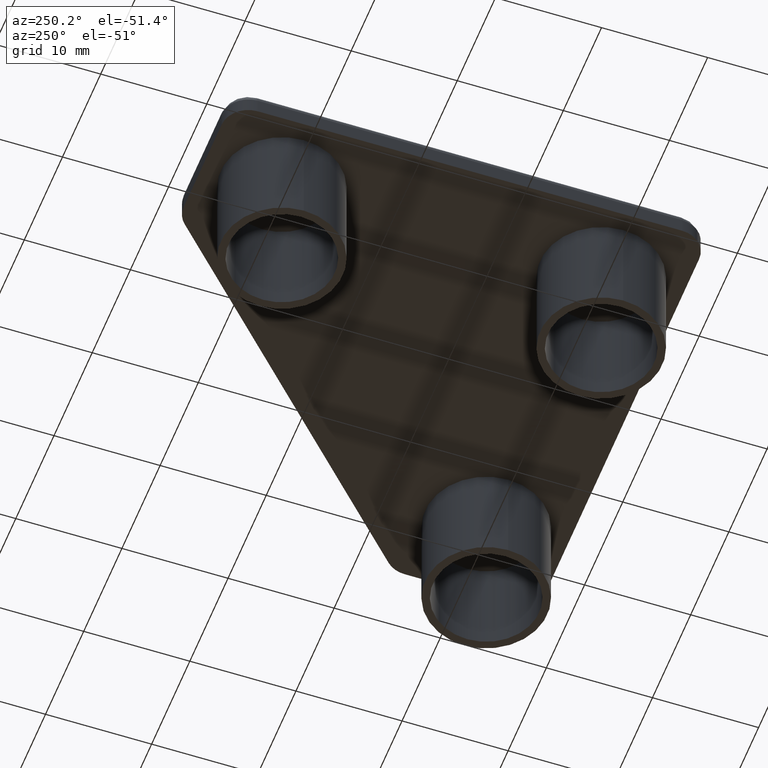
[diagram: clean part render]
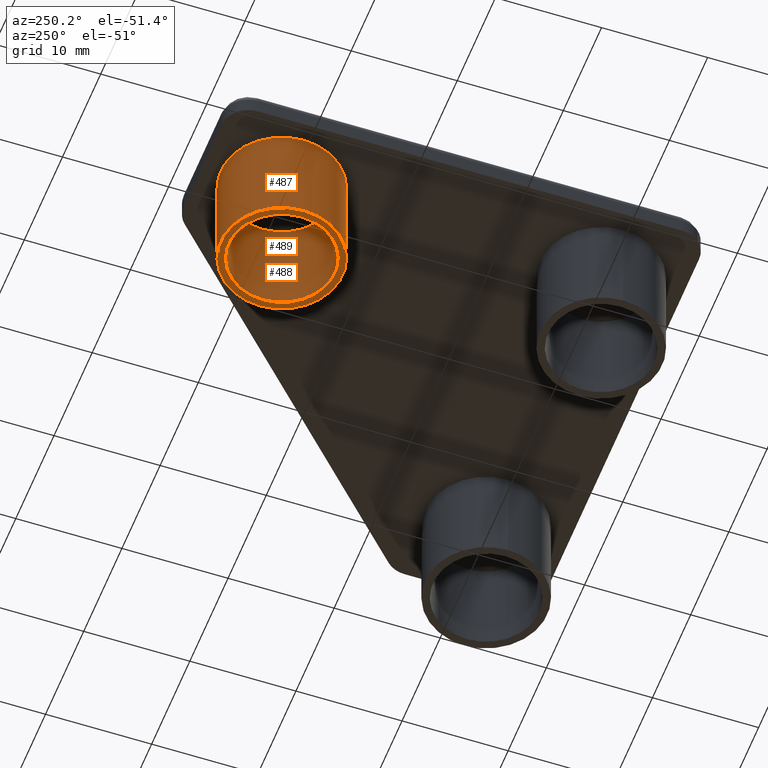
[diagram: same view with one multi-face feature highlighted, each face labeled with its STEP entity id]
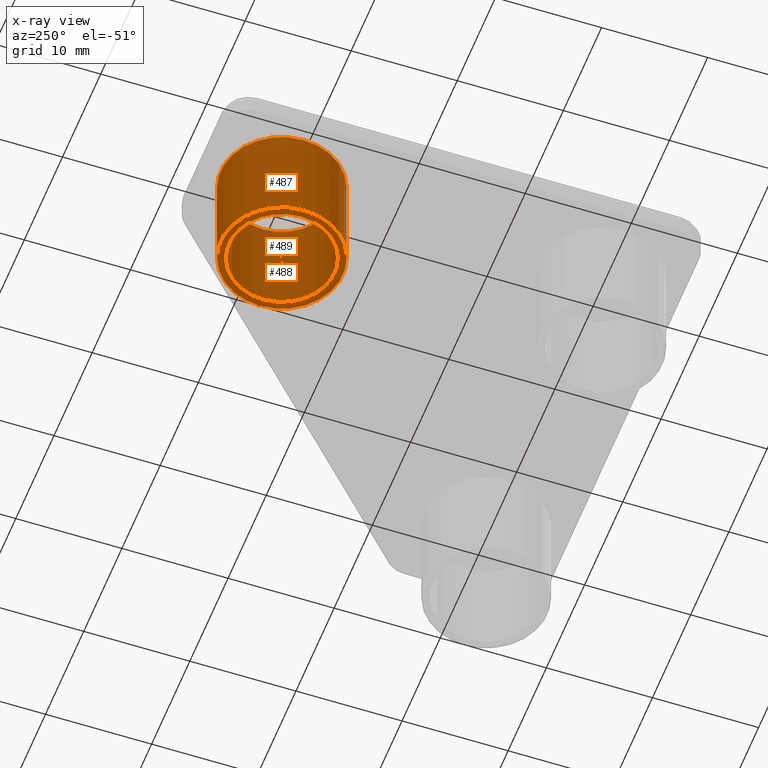
[diagram: x-ray of the same camera — body ghosted, the whole feature saturated]
A machine part, auxiliary view. The highlighted faces form ONE feature: a stepped (counterbored) hole: 2 coaxial cylindrical walls of radii 5 -> 5.75 mm joined by 1 annular planar shoulder face(s). The faces share edges in the B-rep.
The next image is the same camera in x-ray: the body ghosted and the whole hole feature saturated, so the bore chain is visible through the body.
Their STEP definitions:
[1] entity #487 (Cylinder):
#34=CYLINDRICAL_SURFACE('',#553,5.749999999977);
#45=FACE_BOUND('',#123,.T.);
#79=FACE_OUTER_BOUND('',#122,.T.);
#122=EDGE_LOOP('',(#437));
#123=EDGE_LOOP('',(#438));
#135=CIRCLE('',#500,5.749999999977);
#163=CIRCLE('',#554,5.749999999977);
#227=VERTEX_POINT('',#743);
#255=VERTEX_POINT('',#1090);
#269=EDGE_CURVE('',#227,#227,#135,.T.);
#317=EDGE_CURVE('',#255,#255,#163,.T.);
#437=ORIENTED_EDGE('',*,*,#269,.T.);
#438=ORIENTED_EDGE('',*,*,#317,.F.);
#487=ADVANCED_FACE('',(#79,#45),#34,.T.);
#500=AXIS2_PLACEMENT_3D('',#744,#581,#582);
#553=AXIS2_PLACEMENT_3D('',#1089,#707,#708);
#554=AXIS2_PLACEMENT_3D('',#1091,#709,#710);
#581=DIRECTION('center_axis',(0.,0.,-1.));
#582=DIRECTION('ref_axis',(1.,0.,0.));
#707=DIRECTION('center_axis',(0.,0.,-1.));
#708=DIRECTION('ref_axis',(1.,0.,0.));
#709=DIRECTION('center_axis',(0.,0.,-1.));
#710=DIRECTION('ref_axis',(1.,0.,0.));
#743=CARTESIAN_POINT('',(-20.7999777967921,37.5499559998498,0.));
#744=CARTESIAN_POINT('Origin',(-15.0499777968151,37.5499559998498,0.));
#1089=CARTESIAN_POINT('Origin',(-15.0499777968151,37.5499559998498,0.));
#1090=CARTESIAN_POINT('',(-20.7999777967921,37.5499559998498,-9.99999999995998));
#1091=CARTESIAN_POINT('Origin',(-15.0499777968151,37.5499559998498,-9.99999999995998));
[2] entity #488 (Cylinder):
#35=CYLINDRICAL_SURFACE('',#555,4.99999999998);
#46=FACE_BOUND('',#125,.T.);
#80=FACE_OUTER_BOUND('',#124,.T.);
#124=EDGE_LOOP('',(#439));
#125=EDGE_LOOP('',(#440));
#136=CIRCLE('',#502,4.99999999998);
#164=CIRCLE('',#556,4.99999999998);
#228=VERTEX_POINT('',#746);
#256=VERTEX_POINT('',#1093);
#270=EDGE_CURVE('',#228,#228,#136,.T.);
#318=EDGE_CURVE('',#256,#256,#164,.T.);
#439=ORIENTED_EDGE('',*,*,#270,.T.);
#440=ORIENTED_EDGE('',*,*,#318,.F.);
#488=ADVANCED_FACE('',(#80,#46),#35,.F.);
#502=AXIS2_PLACEMENT_3D('',#747,#585,#586);
#555=AXIS2_PLACEMENT_3D('',#1092,#711,#712);
#556=AXIS2_PLACEMENT_3D('',#1094,#713,#714);
#585=DIRECTION('center_axis',(0.,0.,1.));
#586=DIRECTION('ref_axis',(1.,0.,0.));
#711=DIRECTION('center_axis',(0.,0.,1.));
#712=DIRECTION('ref_axis',(1.,0.,0.));
#713=DIRECTION('center_axis',(0.,0.,1.));
#714=DIRECTION('ref_axis',(1.,0.,0.));
#746=CARTESIAN_POINT('',(-20.0499777967951,37.5499559998498,0.));
#747=CARTESIAN_POINT('Origin',(-15.0499777968151,37.5499559998498,0.));
#1092=CARTESIAN_POINT('Origin',(-15.0499777968151,37.5499559998498,0.));
#1093=CARTESIAN_POINT('',(-20.0499777967951,37.5499559998498,-9.99999999995998));
#1094=CARTESIAN_POINT('Origin',(-15.0499777968151,37.5499559998498,-9.99999999995998));
[3] entity #489 (Plane):
#47=FACE_BOUND('',#127,.T.);
#81=FACE_OUTER_BOUND('',#126,.T.);
#126=EDGE_LOOP('',(#441));
#127=EDGE_LOOP('',(#442));
#163=CIRCLE('',#554,5.749999999977);
#164=CIRCLE('',#556,4.99999999998);
#255=VERTEX_POINT('',#1090);
#256=VERTEX_POINT('',#1093);
#317=EDGE_CURVE('',#255,#255,#163,.T.);
#318=EDGE_CURVE('',#256,#256,#164,.T.);
#441=ORIENTED_EDGE('',*,*,#317,.T.);
#442=ORIENTED_EDGE('',*,*,#318,.T.);
#455=PLANE('',#557);
#489=ADVANCED_FACE('',(#81,#47),#455,.T.);
#554=AXIS2_PLACEMENT_3D('',#1091,#709,#710);
#556=AXIS2_PLACEMENT_3D('',#1094,#713,#714);
#557=AXIS2_PLACEMENT_3D('',#1095,#715,#716);
#709=DIRECTION('center_axis',(0.,0.,-1.));
#710=DIRECTION('ref_axis',(1.,0.,0.));
#713=DIRECTION('center_axis',(0.,0.,1.));
#714=DIRECTION('ref_axis',(1.,0.,0.));
#715=DIRECTION('center_axis',(0.,0.,-1.));
#716=DIRECTION('ref_axis',(-1.,0.,0.));
#1090=CARTESIAN_POINT('',(-20.7999777967921,37.5499559998498,-9.99999999995998));
#1091=CARTESIAN_POINT('Origin',(-15.0499777968151,37.5499559998498,-9.99999999995998));
#1093=CARTESIAN_POINT('',(-20.0499777967951,37.5499559998498,-9.99999999995998));
#1094=CARTESIAN_POINT('Origin',(-15.0499777968151,37.5499559998498,-9.99999999995998));
#1095=CARTESIAN_POINT('Origin',(-21.9499825212551,44.4499607242898,-9.99999999995998));